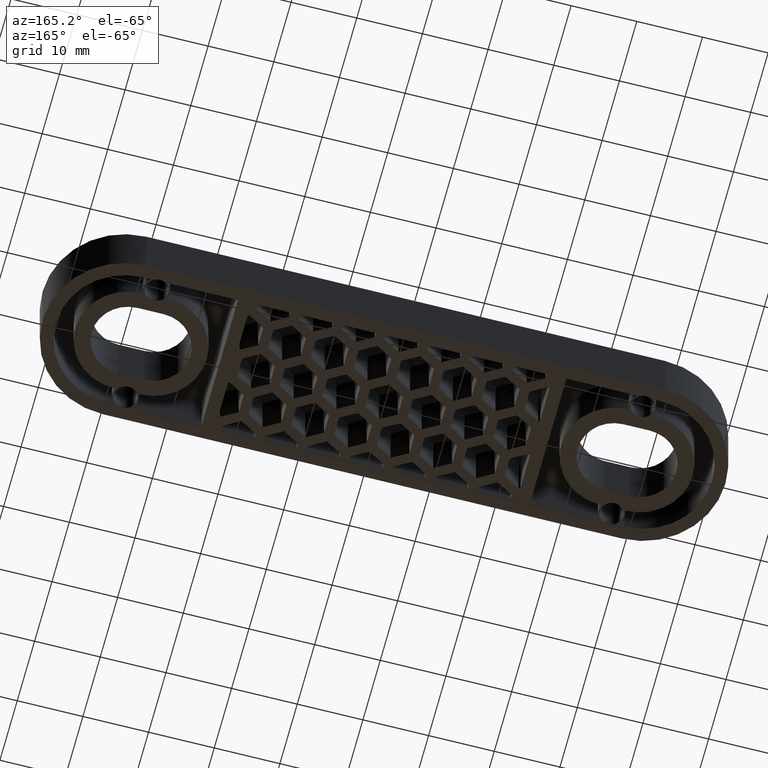
[diagram: clean part render]
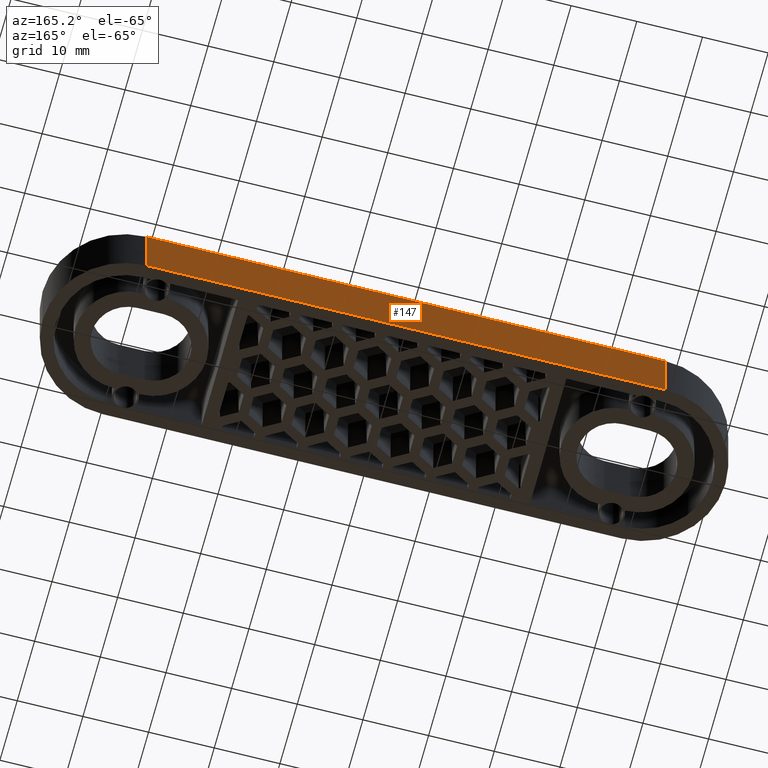
[diagram: same view with one face highlighted and labeled with its STEP entity id]
A machine part, auxiliary view. The second image highlights one B-rep face of the part: STEP entity #147.
In plain terms, the highlighted planar face has unit normal (0, -1, 0).
Its self-contained STEP definition (entity closure, byte-faithful):
#147 = ADVANCED_FACE( '', ( #581 ), #582, .F. );
#581 = FACE_OUTER_BOUND( '', #1347, .T. );
#582 = PLANE( '', #1348 );
#1347 = EDGE_LOOP( '', ( #2562, #2563, #2564, #2565 ) );
#1348 = AXIS2_PLACEMENT_3D( '', #2566, #2567, #2568 );
#2562 = ORIENTED_EDGE( '', *, *, #4804, .T. );
#2563 = ORIENTED_EDGE( '', *, *, #5116, .F. );
#2564 = ORIENTED_EDGE( '', *, *, #5125, .F. );
#2565 = ORIENTED_EDGE( '', *, *, #5123, .T. );
#2566 = CARTESIAN_POINT( '', ( -39.4999999999999, 12.5000000000000, -1.46431667789534E-014 ) );
#2567 = DIRECTION( '', ( 1.75162308040602E-046, -1.00000000000000, 6.12303176911189E-017 ) );
#2568 = DIRECTION( '', ( -1.00000000000000, -1.75162308040602E-046, 9.72346137165804E-063 ) );
#4804 = EDGE_CURVE( '', #5705, #5702, #5706, .T. );
#5116 = EDGE_CURVE( '', #6287, #5702, #6289, .T. );
#5123 = EDGE_CURVE( '', #6299, #5705, #6300, .T. );
#5125 = EDGE_CURVE( '', #6299, #6287, #6302, .T. );
#5702 = VERTEX_POINT( '', #7197 );
#5705 = VERTEX_POINT( '', #7200 );
#5706 = LINE( '', #7201, #7202 );
#6287 = VERTEX_POINT( '', #8056 );
#6289 = LINE( '', #8058, #8059 );
#6299 = VERTEX_POINT( '', #8073 );
#6300 = LINE( '', #8074, #8075 );
#6302 = LINE( '', #8077, #8078 );
#7197 = CARTESIAN_POINT( '', ( 39.5000000000000, 12.5000000000000, 9.99999999999999 ) );
#7200 = CARTESIAN_POINT( '', ( -39.4999999999999, 12.5000000000000, 9.99999999999999 ) );
#7201 = CARTESIAN_POINT( '', ( -39.4999999999999, 12.5000000000000, 9.99999999999999 ) );
#7202 = VECTOR( '', #9470, 1000.00000000000 );
#8056 = CARTESIAN_POINT( '', ( 39.5000000000000, 12.5000000000000, -1.46431667789534E-014 ) );
#8058 = CARTESIAN_POINT( '', ( 39.5000000000000, 12.5000000000000, -1.46431667789534E-014 ) );
#8059 = VECTOR( '', #9858, 1000.00000000000 );
#8073 = CARTESIAN_POINT( '', ( -39.4999999999999, 12.5000000000000, -1.46431667789534E-014 ) );
#8074 = CARTESIAN_POINT( '', ( -39.4999999999999, 12.5000000000000, -1.46431667789534E-014 ) );
#8075 = VECTOR( '', #9869, 1000.00000000000 );
#8077 = CARTESIAN_POINT( '', ( -39.4999999999999, 12.5000000000000, -1.46431667789534E-014 ) );
#8078 = VECTOR( '', #9873, 1000.00000000000 );
#9470 = DIRECTION( '', ( 1.00000000000000, -3.94430452610506E-031, 2.41511019203931E-047 ) );
#9858 = DIRECTION( '', ( 0.000000000000000, 6.12303176911189E-017, 1.00000000000000 ) );
#9869 = DIRECTION( '', ( 0.000000000000000, 6.12303176911189E-017, 1.00000000000000 ) );
#9873 = DIRECTION( '', ( 1.00000000000000, -3.94430452610506E-031, 2.41511019203931E-047 ) );